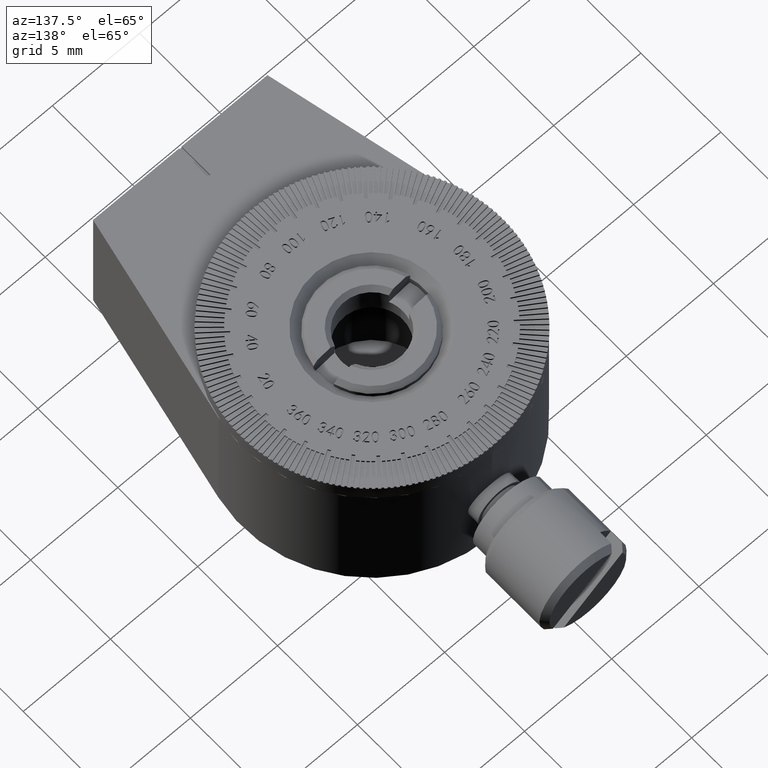
[diagram: clean part render]
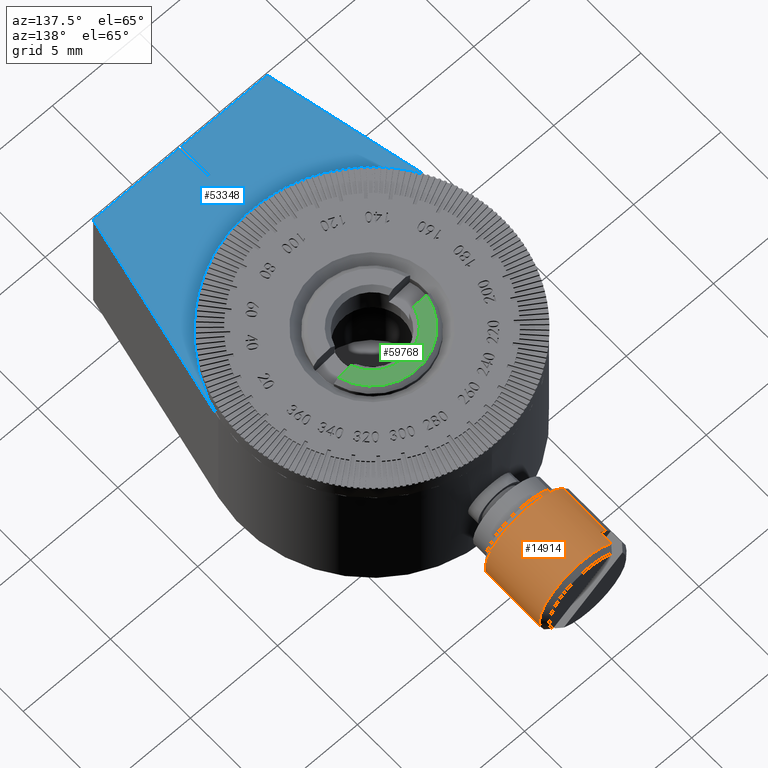
[diagram: same view with three faces highlighted in distinct colors, each labeled with its STEP entity id]
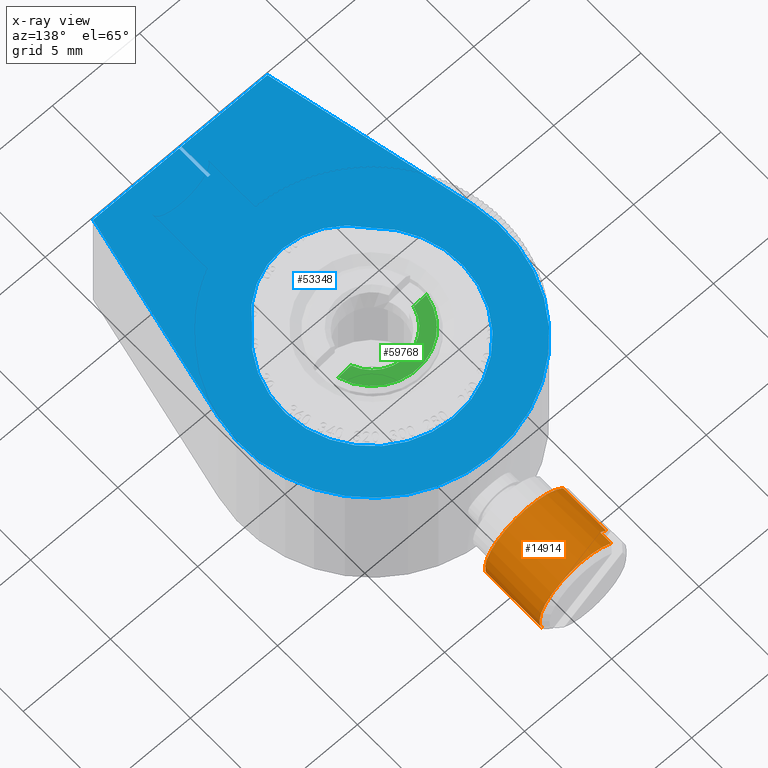
[diagram: x-ray of the same camera — body ghosted, the three highlighted faces saturated]
A machine part, auxiliary view with three faces highlighted in distinct colors.
The next image is the same camera in x-ray (body ghosted, the three faces saturated) — at least one of them is partly hidden behind the body in this view.
Their STEP definitions:

[orange] entity #14914 — the highlighted cylindrical surface (partial cylindrical patch) has radius 2.5 mm, axis along (0, -1, 0).
#300 = VERTEX_POINT ( 'NONE', #10992 ) ;
#609 = DIRECTION ( 'NONE',  ( -0.000000000000000000, -1.000000000000000000, -0.000000000000000000 ) ) ;
#929 = CARTESIAN_POINT ( 'NONE',  ( 0.000000000000000000, 4.000000000000000000, 0.000000000000000000 ) ) ;
#2623 = EDGE_LOOP ( 'NONE', ( #45517, #4782, #62099, #33356, #11579, #4384, #60405, #15984 ) ) ;
#3792 = DIRECTION ( 'NONE',  ( 0.000000000000000000, -1.000000000000000000, 0.000000000000000000 ) ) ;
#4384 = ORIENTED_EDGE ( 'NONE', *, *, #11731, .F. ) ;
#4782 = ORIENTED_EDGE ( 'NONE', *, *, #36936, .F. ) ;
#6111 = VERTEX_POINT ( 'NONE', #47936 ) ;
#6424 = CIRCLE ( 'NONE', #19761, 2.500000000000000000 ) ;
#7001 = CARTESIAN_POINT ( 'NONE',  ( -0.5000000000000000000, 5.000000000000000000, 2.449489742783178325 ) ) ;
#8155 = FACE_OUTER_BOUND ( 'NONE', #2623, .T. ) ;
#10552 = CIRCLE ( 'NONE', #48556, 2.500000000000000000 ) ;
#10992 = CARTESIAN_POINT ( 'NONE',  ( -0.5000000000000000000, 4.000000000000000000, 2.449489742783178325 ) ) ;
#11002 = CARTESIAN_POINT ( 'NONE',  ( 3.061616997868383141E-16, 4.000000000000000000, 2.500000000000000000 ) ) ;
#11579 = ORIENTED_EDGE ( 'NONE', *, *, #11917, .T. ) ;
#11731 = EDGE_CURVE ( 'NONE', #21610, #35245, #10552, .T. ) ;
#11917 = EDGE_CURVE ( 'NONE', #6111, #35245, #28781, .T. ) ;
#12151 = VECTOR ( 'NONE', #60499, 1000.000000000000000 ) ;
#13566 = CIRCLE ( 'NONE', #22789, 2.500000000000000000 ) ;
#14914 = ADVANCED_FACE ( 'NONE', ( #8155 ), #32547, .T. ) ;
#15639 = CARTESIAN_POINT ( 'NONE',  ( 0.000000000000000000, 4.000000000000000000, 0.000000000000000000 ) ) ;
#15984 = ORIENTED_EDGE ( 'NONE', *, *, #32962, .T. ) ;
#16263 = CARTESIAN_POINT ( 'NONE',  ( 0.000000000000000000, 1.300000000000001155, -2.500000000000000000 ) ) ;
#16539 = DIRECTION ( 'NONE',  ( 0.000000000000000000, 0.000000000000000000, -1.000000000000000000 ) ) ;
#16863 = LINE ( 'NONE', #54434, #12151 ) ;
#18438 = VECTOR ( 'NONE', #26574, 1000.000000000000000 ) ;
#19343 = EDGE_CURVE ( 'NONE', #300, #60413, #50012, .T. ) ;
#19474 = CARTESIAN_POINT ( 'NONE',  ( -0.5000000000000000000, 5.000000000000000000, -2.449489742783178325 ) ) ;
#19761 = AXIS2_PLACEMENT_3D ( 'NONE', #25506, #20374, #21314 ) ;
#20370 = CARTESIAN_POINT ( 'NONE',  ( 0.000000000000000000, 4.000000000000000000, -2.500000000000000000 ) ) ;
#20374 = DIRECTION ( 'NONE',  ( 0.000000000000000000, 1.000000000000000000, 0.000000000000000000 ) ) ;
#21125 = CARTESIAN_POINT ( 'NONE',  ( 3.061616997868383141E-16, 1.300000000000001155, 2.500000000000000000 ) ) ;
#21314 = DIRECTION ( 'NONE',  ( 0.000000000000000000, 0.000000000000000000, -1.000000000000000000 ) ) ;
#21325 = CIRCLE ( 'NONE', #63335, 2.500000000000000000 ) ;
#21610 = VERTEX_POINT ( 'NONE', #20370 ) ;
#22789 = AXIS2_PLACEMENT_3D ( 'NONE', #28191, #3792, #23369 ) ;
#23369 = DIRECTION ( 'NONE',  ( 0.000000000000000000, 0.000000000000000000, 1.000000000000000000 ) ) ;
#24118 = CARTESIAN_POINT ( 'NONE',  ( -0.5000000000000000000, 4.699999999999999289, 2.449489742783178325 ) ) ;
#25506 = CARTESIAN_POINT ( 'NONE',  ( 0.000000000000000000, 1.300000000000001155, 0.000000000000000000 ) ) ;
#26574 = DIRECTION ( 'NONE',  ( 0.000000000000000000, 1.000000000000000000, 0.000000000000000000 ) ) ;
#28191 = CARTESIAN_POINT ( 'NONE',  ( 0.000000000000000000, 4.699999999999999289, 0.000000000000000000 ) ) ;
#28781 = LINE ( 'NONE', #19474, #46633 ) ;
#32547 = CYLINDRICAL_SURFACE ( 'NONE', #40401, 2.500000000000000000 ) ;
#32962 = EDGE_CURVE ( 'NONE', #48225, #41605, #6424, .T. ) ;
#33356 = ORIENTED_EDGE ( 'NONE', *, *, #56404, .T. ) ;
#35203 = VERTEX_POINT ( 'NONE', #11002 ) ;
#35213 = DIRECTION ( 'NONE',  ( 0.000000000000000000, 1.000000000000000000, 0.000000000000000000 ) ) ;
#35245 = VERTEX_POINT ( 'NONE', #45319 ) ;
#36936 = EDGE_CURVE ( 'NONE', #300, #35203, #21325, .T. ) ;
#40043 = CARTESIAN_POINT ( 'NONE',  ( 3.061616997868383141E-16, 5.000000000000000000, 2.500000000000000000 ) ) ;
#40314 = DIRECTION ( 'NONE',  ( 0.000000000000000000, 0.000000000000000000, 1.000000000000000000 ) ) ;
#40401 = AXIS2_PLACEMENT_3D ( 'NONE', #46038, #55989, #16539 ) ;
#41605 = VERTEX_POINT ( 'NONE', #21125 ) ;
#41813 = EDGE_CURVE ( 'NONE', #21610, #48225, #16863, .T. ) ;
#44552 = LINE ( 'NONE', #40043, #47303 ) ;
#45319 = CARTESIAN_POINT ( 'NONE',  ( -0.5000000000000000000, 4.000000000000000000, -2.449489742783178325 ) ) ;
#45517 = ORIENTED_EDGE ( 'NONE', *, *, #57999, .F. ) ;
#46038 = CARTESIAN_POINT ( 'NONE',  ( 0.000000000000000000, 5.000000000000000000, 0.000000000000000000 ) ) ;
#46633 = VECTOR ( 'NONE', #62160, 1000.000000000000000 ) ;
#47303 = VECTOR ( 'NONE', #609, 1000.000000000000000 ) ;
#47936 = CARTESIAN_POINT ( 'NONE',  ( -0.5000000000000000000, 4.699999999999999289, -2.449489742783178325 ) ) ;
#48225 = VERTEX_POINT ( 'NONE', #16263 ) ;
#48556 = AXIS2_PLACEMENT_3D ( 'NONE', #929, #49375, #50313 ) ;
#49375 = DIRECTION ( 'NONE',  ( 0.000000000000000000, 1.000000000000000000, 0.000000000000000000 ) ) ;
#50012 = LINE ( 'NONE', #7001, #18438 ) ;
#50313 = DIRECTION ( 'NONE',  ( 0.000000000000000000, 0.000000000000000000, 1.000000000000000000 ) ) ;
#54434 = CARTESIAN_POINT ( 'NONE',  ( 0.000000000000000000, 5.000000000000000000, -2.500000000000000000 ) ) ;
#55989 = DIRECTION ( 'NONE',  ( -0.000000000000000000, -1.000000000000000000, -0.000000000000000000 ) ) ;
#56404 = EDGE_CURVE ( 'NONE', #60413, #6111, #13566, .T. ) ;
#57999 = EDGE_CURVE ( 'NONE', #35203, #41605, #44552, .T. ) ;
#60405 = ORIENTED_EDGE ( 'NONE', *, *, #41813, .T. ) ;
#60413 = VERTEX_POINT ( 'NONE', #24118 ) ;
#60499 = DIRECTION ( 'NONE',  ( -0.000000000000000000, -1.000000000000000000, -0.000000000000000000 ) ) ;
#62099 = ORIENTED_EDGE ( 'NONE', *, *, #19343, .T. ) ;
#62160 = DIRECTION ( 'NONE',  ( -0.000000000000000000, -1.000000000000000000, -0.000000000000000000 ) ) ;
#63335 = AXIS2_PLACEMENT_3D ( 'NONE', #15639, #35213, #40314 ) ;

[blue] entity #53348 — the highlighted planar face has unit normal (0, 0, 1).
#136 = DIRECTION ( 'NONE',  ( 0.000000000000000000, 1.000000000000000000, 0.000000000000000000 ) ) ;
#2635 = VERTEX_POINT ( 'NONE', #42998 ) ;
#2973 = CARTESIAN_POINT ( 'NONE',  ( -3.382758571869346920, 8.000000000000000000, 3.816666666666664209 ) ) ;
#4222 = ORIENTED_EDGE ( 'NONE', *, *, #20475, .T. ) ;
#5123 = AXIS2_PLACEMENT_3D ( 'NONE', #25407, #49145, #34721 ) ;
#5423 = DIRECTION ( 'NONE',  ( -1.776356839400250465E-15, 0.000000000000000000, 1.000000000000000000 ) ) ;
#5794 = CARTESIAN_POINT ( 'NONE',  ( -4.999999999999998224, 8.000000000000000000, 12.00000000000000000 ) ) ;
#5890 = LINE ( 'NONE', #25467, #32235 ) ;
#6338 = AXIS2_PLACEMENT_3D ( 'NONE', #10233, #49363, #5423 ) ;
#6591 = VERTEX_POINT ( 'NONE', #20916 ) ;
#6650 = VECTOR ( 'NONE', #56715, 1000.000000000000000 ) ;
#6886 = ORIENTED_EDGE ( 'NONE', *, *, #10831, .F. ) ;
#7178 = PLANE ( 'NONE',  #35981 ) ;
#7220 = CARTESIAN_POINT ( 'NONE',  ( 0.000000000000000000, 8.000000000000000000, 0.000000000000000000 ) ) ;
#8696 = EDGE_CURVE ( 'NONE', #49044, #31635, #9237, .T. ) ;
#9237 = LINE ( 'NONE', #42285, #22827 ) ;
#10233 = CARTESIAN_POINT ( 'NONE',  ( 1.836970198721029934E-16, 8.000000000000000000, 1.500000000000000000 ) ) ;
#10385 = CARTESIAN_POINT ( 'NONE',  ( 5.000000000000001776, 8.000000000000000000, 11.99999999999999822 ) ) ;
#10831 = EDGE_CURVE ( 'NONE', #14098, #6591, #5890, .T. ) ;
#11509 = DIRECTION ( 'NONE',  ( 0.000000000000000000, 0.000000000000000000, 1.000000000000000000 ) ) ;
#13180 = CARTESIAN_POINT ( 'NONE',  ( 7.318959918176263457, 8.000000000000000000, 1.637933367426556153 ) ) ;
#14098 = VERTEX_POINT ( 'NONE', #33424 ) ;
#14559 = VECTOR ( 'NONE', #51071, 1000.000000000000114 ) ;
#16254 = LINE ( 'NONE', #60208, #21591 ) ;
#17431 = DIRECTION ( 'NONE',  ( 0.000000000000000000, 1.000000000000000000, 0.000000000000000000 ) ) ;
#18248 = EDGE_LOOP ( 'NONE', ( #34955, #4222, #41475, #35155, #21036, #44793, #35690, #18261, #6886 ) ) ;
#18261 = ORIENTED_EDGE ( 'NONE', *, *, #25833, .F. ) ;
#18844 = VERTEX_POINT ( 'NONE', #57570 ) ;
#18869 = EDGE_CURVE ( 'NONE', #59467, #28996, #41964, .T. ) ;
#20138 = DIRECTION ( 'NONE',  ( 1.000000000000000000, 0.000000000000000000, -1.734723475976807094E-16 ) ) ;
#20475 = EDGE_CURVE ( 'NONE', #18844, #40290, #63143, .T. ) ;
#20916 = CARTESIAN_POINT ( 'NONE',  ( -0.07499999999999813760, 8.000000000000000000, 10.20137844026981000 ) ) ;
#21036 = ORIENTED_EDGE ( 'NONE', *, *, #40631, .T. ) ;
#21591 = VECTOR ( 'NONE', #26200, 1000.000000000000000 ) ;
#21810 = AXIS2_PLACEMENT_3D ( 'NONE', #60589, #59664, #11509 ) ;
#22827 = VECTOR ( 'NONE', #57368, 1000.000000000000000 ) ;
#24204 = DIRECTION ( 'NONE',  ( 0.000000000000000000, 0.000000000000000000, 1.000000000000000000 ) ) ;
#24530 = ORIENTED_EDGE ( 'NONE', *, *, #57997, .T. ) ;
#25227 = EDGE_LOOP ( 'NONE', ( #55870, #24530, #35284 ) ) ;
#25407 = CARTESIAN_POINT ( 'NONE',  ( 1.836970198721029934E-16, 8.000000000000000000, 1.500000000000000000 ) ) ;
#25467 = CARTESIAN_POINT ( 'NONE',  ( -0.07499999999999813760, 8.000000000000000000, 10.20137844026981000 ) ) ;
#25833 = EDGE_CURVE ( 'NONE', #6591, #31635, #47385, .T. ) ;
#26200 = DIRECTION ( 'NONE',  ( 0.2183911156568740519, -0.000000000000000000, -0.9758613224235018757 ) ) ;
#26427 = FACE_BOUND ( 'NONE', #25227, .T. ) ;
#26467 = DIRECTION ( 'NONE',  ( 0.000000000000000000, 1.000000000000000000, 0.000000000000000000 ) ) ;
#26803 = VERTEX_POINT ( 'NONE', #43631 ) ;
#27144 = CARTESIAN_POINT ( 'NONE',  ( 3.382758571869347364, 8.000000000000000000, 3.816666666666663765 ) ) ;
#27870 = CIRCLE ( 'NONE', #6338, 4.099999999999997868 ) ;
#28421 = CARTESIAN_POINT ( 'NONE',  ( 0.07499999999999998335, 8.000000000000000000, -1.379175874936228509E-17 ) ) ;
#28996 = VERTEX_POINT ( 'NONE', #33647 ) ;
#30894 = DIRECTION ( 'NONE',  ( -1.000000000000000000, -0.000000000000000000, -0.000000000000000000 ) ) ;
#31554 = FACE_OUTER_BOUND ( 'NONE', #18248, .T. ) ;
#31635 = VERTEX_POINT ( 'NONE', #33108 ) ;
#32235 = VECTOR ( 'NONE', #30894, 1000.000000000000000 ) ;
#33108 = CARTESIAN_POINT ( 'NONE',  ( -0.07499999999999781841, 8.000000000000000000, 12.00000000000000000 ) ) ;
#33424 = CARTESIAN_POINT ( 'NONE',  ( 0.07500000000000185685, 8.000000000000000000, 10.20137844026981000 ) ) ;
#33647 = CARTESIAN_POINT ( 'NONE',  ( 0.000000000000000000, 8.000000000000000000, -7.500000000000000000 ) ) ;
#34721 = DIRECTION ( 'NONE',  ( 0.000000000000000000, 0.000000000000000000, 1.000000000000000000 ) ) ;
#34955 = ORIENTED_EDGE ( 'NONE', *, *, #38633, .F. ) ;
#35075 = EDGE_CURVE ( 'NONE', #26803, #49044, #50756, .T. ) ;
#35155 = ORIENTED_EDGE ( 'NONE', *, *, #18869, .T. ) ;
#35284 = ORIENTED_EDGE ( 'NONE', *, *, #50734, .T. ) ;
#35690 = ORIENTED_EDGE ( 'NONE', *, *, #8696, .T. ) ;
#35700 = CIRCLE ( 'NONE', #58229, 7.500000000000000000 ) ;
#35981 = AXIS2_PLACEMENT_3D ( 'NONE', #46308, #17431, #61075 ) ;
#36071 = EDGE_CURVE ( 'NONE', #46661, #54521, #62806, .T. ) ;
#38633 = EDGE_CURVE ( 'NONE', #18844, #14098, #52802, .T. ) ;
#39369 = CARTESIAN_POINT ( 'NONE',  ( -4.999999999999998224, 8.000000000000000000, 12.00000000000000000 ) ) ;
#39893 = CARTESIAN_POINT ( 'NONE',  ( 0.000000000000000000, 8.000000000000000000, 0.000000000000000000 ) ) ;
#40290 = VERTEX_POINT ( 'NONE', #10385 ) ;
#40509 = CARTESIAN_POINT ( 'NONE',  ( -7.318959918176263457, 8.000000000000000000, 1.637933367426557929 ) ) ;
#40631 = EDGE_CURVE ( 'NONE', #28996, #26803, #35700, .T. ) ;
#40955 = CIRCLE ( 'NONE', #5123, 4.099999999999997868 ) ;
#41221 = DIRECTION ( 'NONE',  ( 0.000000000000000000, 0.000000000000000000, 1.000000000000000000 ) ) ;
#41475 = ORIENTED_EDGE ( 'NONE', *, *, #44955, .T. ) ;
#41964 = CIRCLE ( 'NONE', #47097, 7.500000000000000000 ) ;
#42252 = CARTESIAN_POINT ( 'NONE',  ( -0.07499999999999767963, 8.000000000000000000, 12.70714618722763944 ) ) ;
#42285 = CARTESIAN_POINT ( 'NONE',  ( -4.999999999999998224, 8.000000000000000000, 12.00000000000000000 ) ) ;
#42998 = CARTESIAN_POINT ( 'NONE',  ( 1.836970198721029934E-16, 8.000000000000000000, 5.599999999999996980 ) ) ;
#43631 = CARTESIAN_POINT ( 'NONE',  ( -7.318959918176263457, 8.000000000000000000, 1.637933367426557929 ) ) ;
#44793 = ORIENTED_EDGE ( 'NONE', *, *, #35075, .T. ) ;
#44955 = EDGE_CURVE ( 'NONE', #40290, #59467, #16254, .T. ) ;
#46308 = CARTESIAN_POINT ( 'NONE',  ( 0.000000000000000000, 8.000000000000000000, 0.000000000000000000 ) ) ;
#46661 = VERTEX_POINT ( 'NONE', #2973 ) ;
#47097 = AXIS2_PLACEMENT_3D ( 'NONE', #39893, #136, #24204 ) ;
#47385 = LINE ( 'NONE', #42252, #6650 ) ;
#47869 = VECTOR ( 'NONE', #48614, 1000.000000000000000 ) ;
#48614 = DIRECTION ( 'NONE',  ( -1.838901166581638505E-16, 0.000000000000000000, -1.000000000000000000 ) ) ;
#49044 = VERTEX_POINT ( 'NONE', #5794 ) ;
#49145 = DIRECTION ( 'NONE',  ( -0.000000000000000000, -1.000000000000000000, -0.000000000000000000 ) ) ;
#49363 = DIRECTION ( 'NONE',  ( -0.000000000000000000, -1.000000000000000000, -0.000000000000000000 ) ) ;
#50734 = EDGE_CURVE ( 'NONE', #2635, #46661, #40955, .T. ) ;
#50756 = LINE ( 'NONE', #40509, #14559 ) ;
#51071 = DIRECTION ( 'NONE',  ( 0.2183911156568743572, 0.000000000000000000, 0.9758613224235017647 ) ) ;
#52802 = LINE ( 'NONE', #28421, #47869 ) ;
#53348 = ADVANCED_FACE ( 'NONE', ( #26427, #31554 ), #7178, .T. ) ;
#54367 = VECTOR ( 'NONE', #20138, 1000.000000000000000 ) ;
#54521 = VERTEX_POINT ( 'NONE', #27144 ) ;
#55870 = ORIENTED_EDGE ( 'NONE', *, *, #36071, .T. ) ;
#56715 = DIRECTION ( 'NONE',  ( 1.838901166581638505E-16, -0.000000000000000000, 1.000000000000000000 ) ) ;
#57368 = DIRECTION ( 'NONE',  ( 1.000000000000000000, 0.000000000000000000, -1.734723475976807094E-16 ) ) ;
#57570 = CARTESIAN_POINT ( 'NONE',  ( 0.07500000000000217604, 8.000000000000000000, 12.00000000000000000 ) ) ;
#57997 = EDGE_CURVE ( 'NONE', #54521, #2635, #27870, .T. ) ;
#58229 = AXIS2_PLACEMENT_3D ( 'NONE', #7220, #26467, #41221 ) ;
#59467 = VERTEX_POINT ( 'NONE', #13180 ) ;
#59664 = DIRECTION ( 'NONE',  ( -0.000000000000000000, -1.000000000000000000, -0.000000000000000000 ) ) ;
#60208 = CARTESIAN_POINT ( 'NONE',  ( 7.318959918176263457, 8.000000000000000000, 1.637933367426556153 ) ) ;
#60589 = CARTESIAN_POINT ( 'NONE',  ( 0.000000000000000000, 8.000000000000000000, 0.000000000000000000 ) ) ;
#61075 = DIRECTION ( 'NONE',  ( 0.000000000000000000, -0.000000000000000000, 1.000000000000000000 ) ) ;
#62806 = CIRCLE ( 'NONE', #21810, 5.099999999999996980 ) ;
#63143 = LINE ( 'NONE', #39369, #54367 ) ;

[green] entity #59768 — the highlighted planar face has unit normal (0, 0, 1).
#1097 = CARTESIAN_POINT ( 'NONE',  ( 0.000000000000000000, 0.000000000000000000, 0.000000000000000000 ) ) ;
#4226 = EDGE_LOOP ( 'NONE', ( #6981, #49200, #4851, #10702 ) ) ;
#4851 = ORIENTED_EDGE ( 'NONE', *, *, #59420, .F. ) ;
#6251 = VERTEX_POINT ( 'NONE', #26414 ) ;
#6981 = ORIENTED_EDGE ( 'NONE', *, *, #9154, .F. ) ;
#9015 = VERTEX_POINT ( 'NONE', #18463 ) ;
#9154 = EDGE_CURVE ( 'NONE', #9015, #6251, #49573, .T. ) ;
#10702 = ORIENTED_EDGE ( 'NONE', *, *, #21650, .T. ) ;
#12414 = VECTOR ( 'NONE', #53755, 1000.000000000000000 ) ;
#13437 = AXIS2_PLACEMENT_3D ( 'NONE', #15570, #60451, #31251 ) ;
#13980 = PLANE ( 'NONE',  #27021 ) ;
#15227 = DIRECTION ( 'NONE',  ( 1.000000000000000000, 0.000000000000000000, 0.000000000000000000 ) ) ;
#15570 = CARTESIAN_POINT ( 'NONE',  ( 0.000000000000000000, 0.000000000000000000, 0.000000000000000000 ) ) ;
#17430 = AXIS2_PLACEMENT_3D ( 'NONE', #1097, #20047, #15227 ) ;
#18463 = CARTESIAN_POINT ( 'NONE',  ( 2.683747380063931764, 0.6000000000000000888, 0.000000000000000000 ) ) ;
#19695 = EDGE_CURVE ( 'NONE', #9015, #31439, #42013, .T. ) ;
#20047 = DIRECTION ( 'NONE',  ( 0.000000000000000000, 0.000000000000000000, 1.000000000000000000 ) ) ;
#21650 = EDGE_CURVE ( 'NONE', #35240, #6251, #31858, .T. ) ;
#26414 = CARTESIAN_POINT ( 'NONE',  ( 1.907878402833896869, 0.6000000000000000888, 0.000000000000000000 ) ) ;
#27021 = AXIS2_PLACEMENT_3D ( 'NONE', #43500, #33557, #53456 ) ;
#31251 = DIRECTION ( 'NONE',  ( 1.000000000000000000, 0.000000000000000000, 0.000000000000000000 ) ) ;
#31439 = VERTEX_POINT ( 'NONE', #61345 ) ;
#31858 = CIRCLE ( 'NONE', #13437, 2.000000000000005329 ) ;
#32767 = DIRECTION ( 'NONE',  ( -1.000000000000000000, -0.000000000000000000, -0.000000000000000000 ) ) ;
#33557 = DIRECTION ( 'NONE',  ( 0.000000000000000000, 0.000000000000000000, 1.000000000000000000 ) ) ;
#35240 = VERTEX_POINT ( 'NONE', #60394 ) ;
#38521 = CARTESIAN_POINT ( 'NONE',  ( -50000.00000000001455, 0.6000000000000000888, 0.000000000000000000 ) ) ;
#42013 = CIRCLE ( 'NONE', #17430, 2.750000000000003109 ) ;
#43500 = CARTESIAN_POINT ( 'NONE',  ( 0.000000000000000000, 0.000000000000000000, 0.000000000000000000 ) ) ;
#49200 = ORIENTED_EDGE ( 'NONE', *, *, #19695, .T. ) ;
#49242 = CARTESIAN_POINT ( 'NONE',  ( -50000.00000000001455, 0.6000000000000000888, 0.000000000000000000 ) ) ;
#49573 = LINE ( 'NONE', #49242, #12414 ) ;
#53456 = DIRECTION ( 'NONE',  ( 1.000000000000000000, 0.000000000000000000, -0.000000000000000000 ) ) ;
#53572 = VECTOR ( 'NONE', #32767, 1000.000000000000000 ) ;
#53755 = DIRECTION ( 'NONE',  ( -1.000000000000000000, -0.000000000000000000, -0.000000000000000000 ) ) ;
#57942 = FACE_OUTER_BOUND ( 'NONE', #4226, .T. ) ;
#59420 = EDGE_CURVE ( 'NONE', #35240, #31439, #62937, .T. ) ;
#59768 = ADVANCED_FACE ( 'NONE', ( #57942 ), #13980, .T. ) ;
#60394 = CARTESIAN_POINT ( 'NONE',  ( -1.907878402833896869, 0.6000000000000000888, 0.000000000000000000 ) ) ;
#60451 = DIRECTION ( 'NONE',  ( -0.000000000000000000, -0.000000000000000000, -1.000000000000000000 ) ) ;
#61345 = CARTESIAN_POINT ( 'NONE',  ( -2.683747380063931764, 0.6000000000000000888, 0.000000000000000000 ) ) ;
#62937 = LINE ( 'NONE', #38521, #53572 ) ;